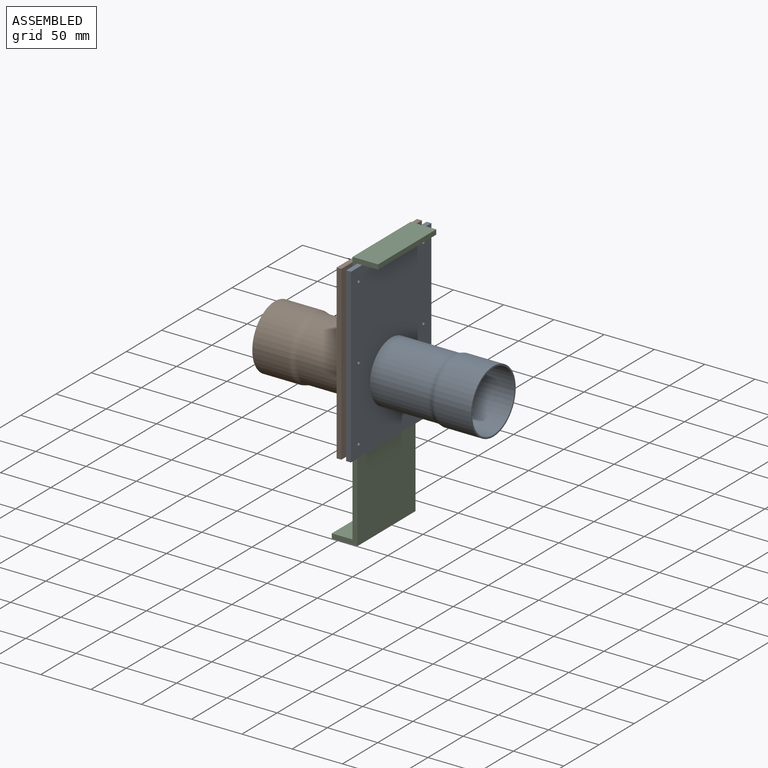
[diagram: assembled view]
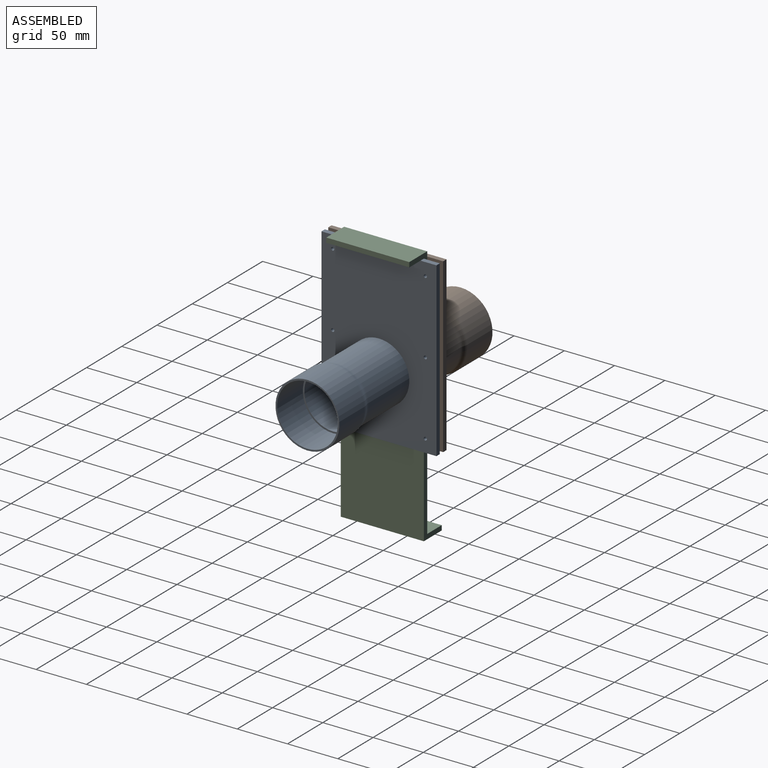
[diagram: assembled view, second angle]
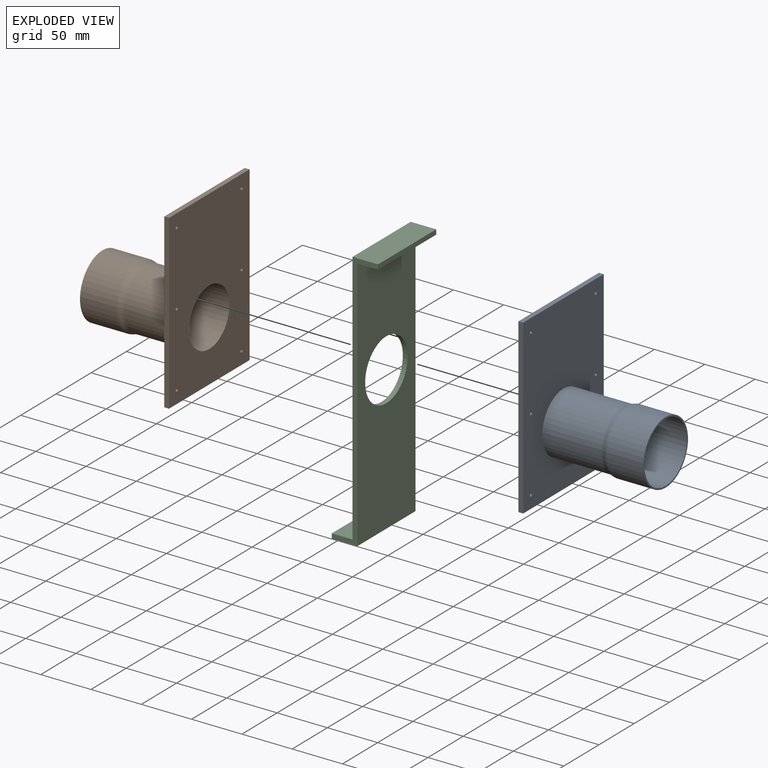
[diagram: exploded view]
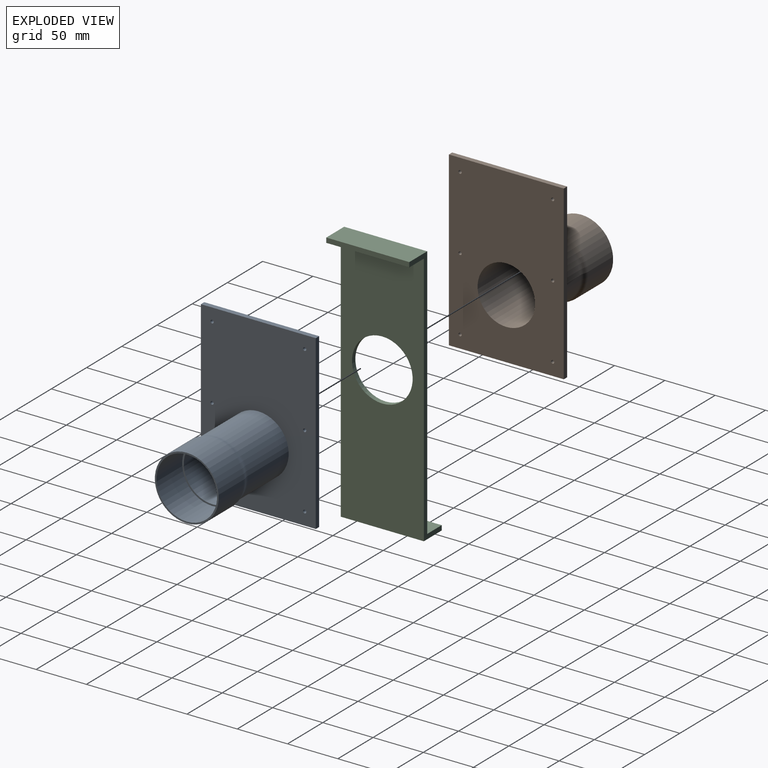
[diagram: exploded view, second angle]
ASSEMBLY  parts=3 mates=2
PART A: 20 faces, bbox 106.4x114.3x171.5 mm
  f0: cylinder r=28.57mm len=69.85mm, axis (1,0,0), area 12541mm2, adj f5,f12
  f1: cylinder r=30.16mm len=60.33mm, axis (1,0,0), area 11000.8mm2, adj f6,f13
  f2: cylinder r=31.75mm len=63.5mm, axis (1,0,0), area 7117.7mm2, adj f3,f7
  f3: plane 63.5x63.5mm, normal (-1,0,0), area 308.8mm2, adj f2,f4
  f4: cylinder r=30.16mm len=60.33mm, axis (1,0,0), area 6919.7mm2, adj f3,f5
  f5: plane 60.33x60.33mm, normal (-1,0,0), area 292.9mm2, adj f0,f4
  f6: torus R=40.32mm, axis (-1,0,0), area 772.9mm2, adj f1,f7
  f7: torus R=21.59mm, axis (-1,0,0), area 799.7mm2, adj f2,f6
  f8: plane 171.45x4.76mm, normal (0,-1,0), area 816.5mm2, adj f9,f11,f12,f13
  f9: plane 114.3x4.76mm, normal (0,0,-1), area 544.4mm2, adj f8,f10,f12,f13
  f10: plane 171.45x4.76mm, normal (0,1,0), area 816.5mm2, adj f9,f11,f12,f13
  f11: plane 114.3x4.76mm, normal (0,0,1), area 544.4mm2, adj f8,f10,f12,f13
  f12: plane 171.45x114.3mm, normal (1,0,0), area 16984mm2, adj f0,f8,f9,f10,f11,f14,f15,f16
  f13: plane 171.45x114.3mm, normal (-1,0,0), area 16691.1mm2, adj f1,f8,f9,f10,f11,f14,f15,f16
  f14: cylinder r=1.59mm len=4.76mm, axis (1,0,0), area 47.5mm2, adj f12,f13
  f15: cylinder r=1.59mm len=4.76mm, axis (1,0,0), area 47.5mm2, adj f12,f13
  f16: cylinder r=1.59mm len=4.76mm, axis (1,0,0), area 47.5mm2, adj f12,f13
  f17: cylinder r=1.59mm len=4.76mm, axis (1,0,0), area 47.5mm2, adj f12,f13
  f18: cylinder r=1.59mm len=4.76mm, axis (1,0,0), area 47.5mm2, adj f12,f13
  f19: cylinder r=1.59mm len=4.76mm, axis (1,0,0), area 47.5mm2, adj f12,f13
PART B: same geometry as A
PART C: 11 faces, bbox 46x82.6x258.8 mm
  f0: plane 254x82.55mm, normal (-1,0,0), area 18109.6mm2, adj f1,f7,f8,f9,f10
  f1: plane 82.55x20.64mm, normal (0,0,1), area 1703.6mm2, adj f0,f2,f8,f9
  f2: plane 82.55x4.76mm, normal (-1,0,0), area 393.1mm2, adj f1,f3,f8,f9
  f3: plane 82.55x25.4mm, normal (0,0,-1), area 2096.8mm2, adj f2,f4,f8,f9
  f4: plane 254x82.55mm, normal (1,0,0), area 18109.6mm2, adj f3,f5,f8,f9,f10
  f5: plane 82.55x20.64mm, normal (0,0,-1), area 1703.6mm2, adj f4,f6,f8,f9
  f6: plane 82.55x4.76mm, normal (1,0,0), area 393.1mm2, adj f5,f7,f8,f9
  f7: plane 82.55x25.4mm, normal (0,0,1), area 2096.8mm2, adj f0,f6,f8,f9
  f8: plane 258.76x46.04mm, normal (0,-1,0), area 1428.9mm2, adj f0,f1,f2,f3,f4,f5,f6,f7
  f9: plane 258.76x46.04mm, normal (0,1,0), area 1428.9mm2, adj f0,f1,f2,f3,f4,f5,f6,f7
  f10: cylinder r=30.16mm len=60.33mm, axis (1,0,0), area 902.6mm2, adj f0,f4
PLACE A rot(axis=(0,0,-1),180deg) t=(330.72,82.36,-387.46)mm
PLACE B t=(316.43,82.36,-387.46)mm fixed
PLACE C t=(316.43,82.36,-382.7)mm
MATE planar B.f12 <-> C.f0  axis (1,0,0) through (321.19,82.36,-447.78)mm
MATE cylindrical A.f18 <-> B.f15  axis (-1,0,0) through (325.96,36.32,-362.06)mm
